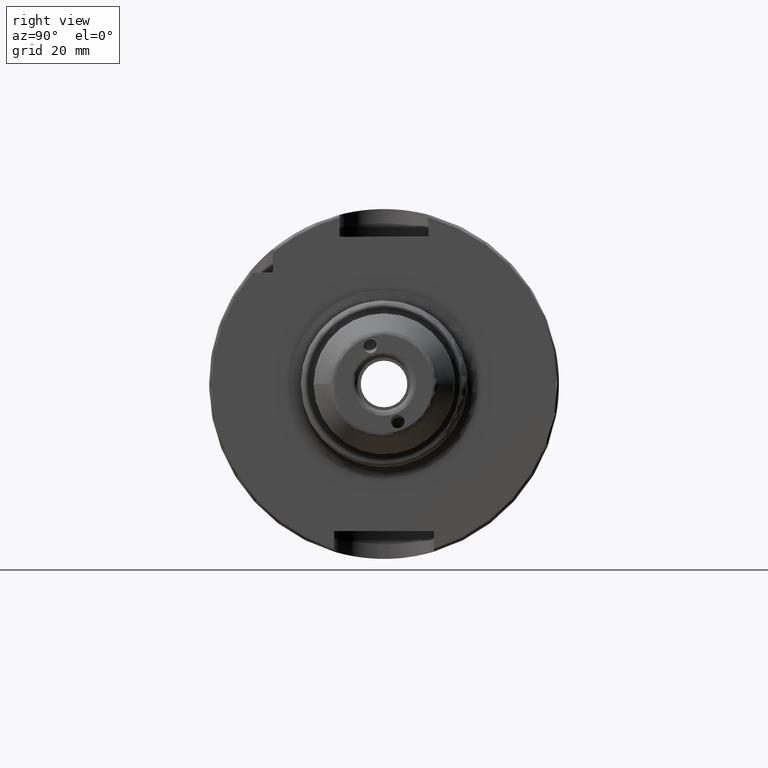
[diagram: clean part render]
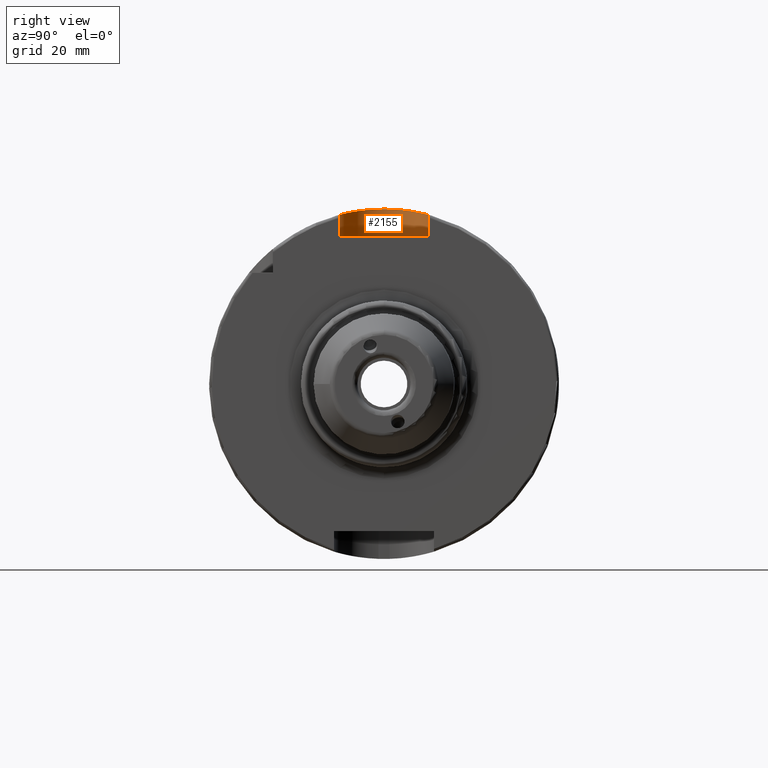
[diagram: same view with one face highlighted and labeled with its STEP entity id]
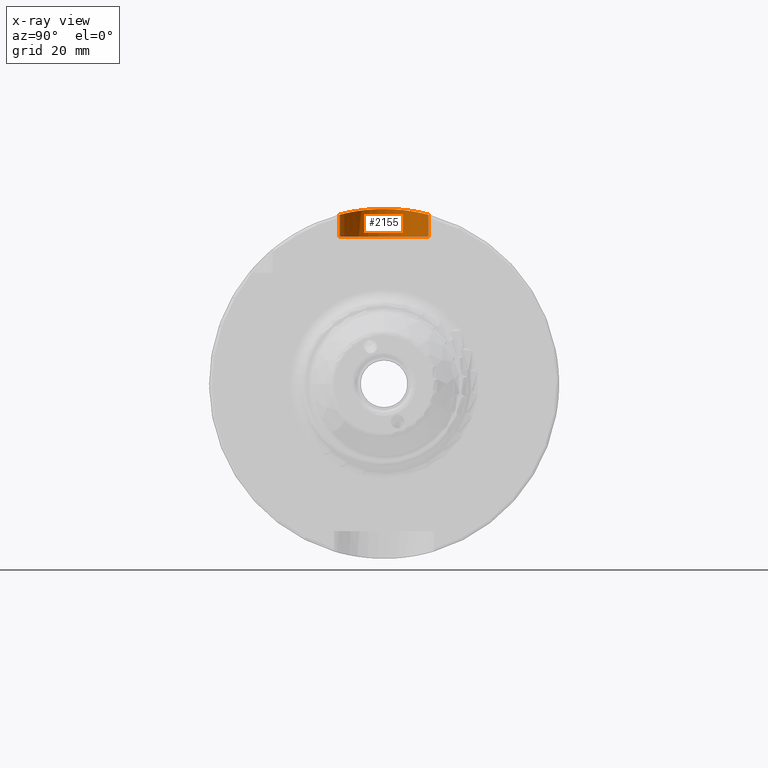
[diagram: x-ray of the same camera — body ghosted, the highlighted face saturated]
A machine part, right view. The second image highlights one B-rep face of the part: STEP entity #2155.
The next image is the same camera in x-ray: the body ghosted, the highlighted face saturated — about 0% of this face is hidden behind the body in this view.
In plain terms, the highlighted cylindrical surface (partial cylindrical patch) has radius 8 mm, axis along (0, 0, 1).
Its self-contained STEP definition (entity closure, byte-faithful):
#71=B_SPLINE_CURVE_WITH_KNOTS('',3,(#4284,#4285,#4286,#4287,#4288,#4289,
#4290,#4291,#4292,#4293,#4294,#4295,#4296,#4297,#4298,#4299,#4300,#4301),
 .UNSPECIFIED.,.F.,.F.,(4,2,2,2,2,2,2,2,4),(0.,0.302805879979318,0.605611759958635,
0.908372461246501,1.21113316253437,1.51389386382223,1.8166545651101,2.11946044508942,
2.42226632506874),.UNSPECIFIED.);
#214=CYLINDRICAL_SURFACE('',#2395,8.);
#305=FACE_OUTER_BOUND('',#441,.T.);
#441=EDGE_LOOP('',(#1848,#1849,#1850,#1851));
#587=LINE('',#4647,#697);
#588=LINE('',#4648,#698);
#697=VECTOR('',#2927,10.);
#698=VECTOR('',#2928,10.);
#801=CIRCLE('',#2394,8.);
#982=VERTEX_POINT('',#4281);
#983=VERTEX_POINT('',#4283);
#1037=VERTEX_POINT('',#4631);
#1038=VERTEX_POINT('',#4633);
#1243=EDGE_CURVE('',#982,#983,#71,.T.);
#1328=EDGE_CURVE('',#1037,#1038,#801,.T.);
#1331=EDGE_CURVE('',#1038,#982,#587,.T.);
#1332=EDGE_CURVE('',#1037,#983,#588,.T.);
#1848=ORIENTED_EDGE('',*,*,#1243,.F.);
#1849=ORIENTED_EDGE('',*,*,#1331,.F.);
#1850=ORIENTED_EDGE('',*,*,#1328,.F.);
#1851=ORIENTED_EDGE('',*,*,#1332,.T.);
#2155=ADVANCED_FACE('',(#305),#214,.F.);
#2394=AXIS2_PLACEMENT_3D('',#4634,#2922,#2923);
#2395=AXIS2_PLACEMENT_3D('',#4646,#2925,#2926);
#2922=DIRECTION('center_axis',(0.,0.,1.));
#2923=DIRECTION('ref_axis',(0.,1.,0.));
#2925=DIRECTION('center_axis',(0.,0.,1.));
#2926=DIRECTION('ref_axis',(0.,1.,0.));
#2927=DIRECTION('',(0.,0.,1.));
#2928=DIRECTION('',(0.,0.,1.));
#4281=CARTESIAN_POINT('',(13.,-8.,30.4671954731642));
#4283=CARTESIAN_POINT('',(13.,8.,30.4671954731642));
#4284=CARTESIAN_POINT('Ctrl Pts',(13.,-8.,30.4671954731643));
#4285=CARTESIAN_POINT('Ctrl Pts',(11.9906470667356,-8.,30.4671954731643));
#4286=CARTESIAN_POINT('Ctrl Pts',(10.9172075930168,-7.79737202490167,30.5225803085525));
#4287=CARTESIAN_POINT('Ctrl Pts',(8.94758399331801,-6.97961067526075,30.719895002943));
#4288=CARTESIAN_POINT('Ctrl Pts',(8.05099322370438,-6.36470172268915,30.8586830127239));
#4289=CARTESIAN_POINT('Ctrl Pts',(6.63540388828045,-4.94911238726521,31.1170994373341));
#4290=CARTESIAN_POINT('Ctrl Pts',(6.02041263015313,-4.05247770930662,31.2539072689014));
#4291=CARTESIAN_POINT('Ctrl Pts',(5.20259114887399,-2.08269813865027,31.4466478906396));
#4292=CARTESIAN_POINT('Ctrl Pts',(5.,-1.00920233762622,31.5));
#4293=CARTESIAN_POINT('Ctrl Pts',(5.,1.00920233762622,31.5));
#4294=CARTESIAN_POINT('Ctrl Pts',(5.20259114887399,2.08269813865027,31.4466478906396));
#4295=CARTESIAN_POINT('Ctrl Pts',(6.02041263015313,4.05247770930662,31.2539072689014));
#4296=CARTESIAN_POINT('Ctrl Pts',(6.63540388828045,4.94911238726521,31.1170994373341));
#4297=CARTESIAN_POINT('Ctrl Pts',(8.05099322370439,6.36470172268915,30.8586830127239));
#4298=CARTESIAN_POINT('Ctrl Pts',(8.94758399331801,6.97961067526075,30.719895002943));
#4299=CARTESIAN_POINT('Ctrl Pts',(10.9172075930168,7.79737202490167,30.5225803085525));
#4300=CARTESIAN_POINT('Ctrl Pts',(11.9906470667356,8.,30.4671954731643));
#4301=CARTESIAN_POINT('Ctrl Pts',(13.,8.,30.4671954731643));
#4631=CARTESIAN_POINT('',(13.,8.,26.5));
#4633=CARTESIAN_POINT('',(13.,-8.,26.5));
#4634=CARTESIAN_POINT('Origin',(13.,0.,26.5));
#4646=CARTESIAN_POINT('Origin',(13.,0.,26.5));
#4647=CARTESIAN_POINT('',(13.,-8.,26.5));
#4648=CARTESIAN_POINT('',(13.,8.,26.5));